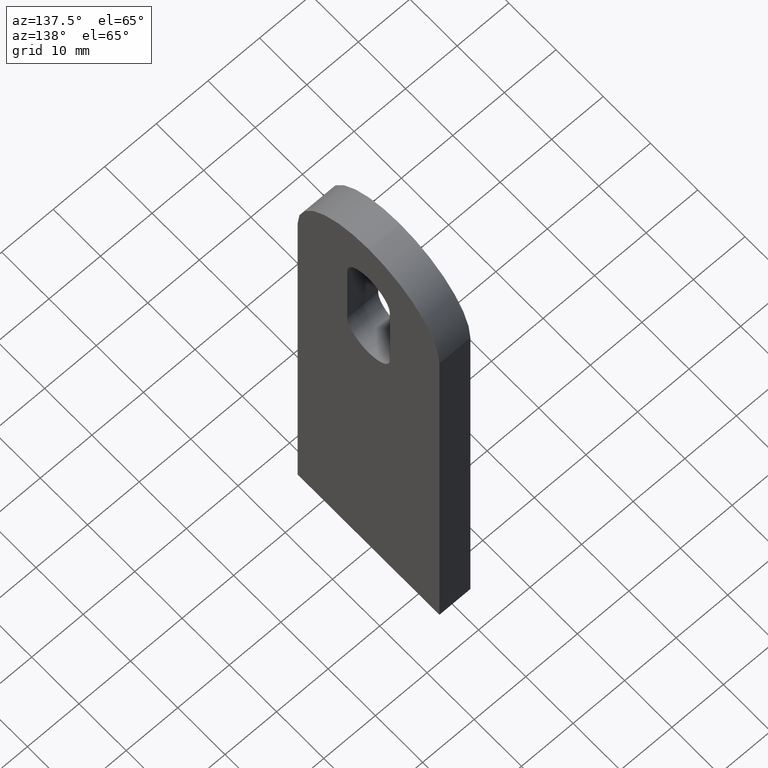
[diagram: clean part render]
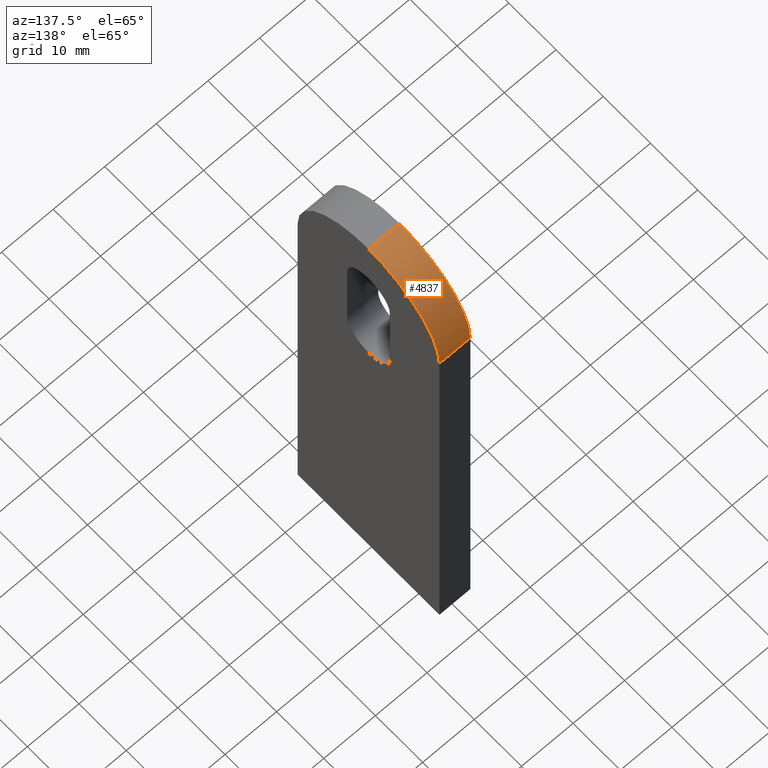
[diagram: same view with one face highlighted and labeled with its STEP entity id]
A machine part, auxiliary view. The second image highlights one B-rep face of the part: STEP entity #4837.
In plain terms, the highlighted cylindrical surface (partial cylindrical patch) has radius 15 mm, axis along (-1, -0, -0).
Its self-contained STEP definition (entity closure, byte-faithful):
#224 = AXIS2_PLACEMENT_3D ( 'NONE', #2365, #9261, #3348 ) ;
#307 = EDGE_CURVE ( 'NONE', #5444, #10231, #366, .T. ) ;
#318 = VECTOR ( 'NONE', #1847, 1000.000000000000000 ) ;
#366 = LINE ( 'NONE', #4333, #10526 ) ;
#824 = DIRECTION ( 'NONE',  ( -1.000000000000000000, -0.0000000000000000000, 0.0000000000000000000 ) ) ;
#1026 = CIRCLE ( 'NONE', #224, 15.00000000000000000 ) ;
#1277 = ORIENTED_EDGE ( 'NONE', *, *, #11747, .F. ) ;
#1487 = DIRECTION ( 'NONE',  ( -1.000000000000000000, -0.0000000000000000000, -0.0000000000000000000 ) ) ;
#1847 = DIRECTION ( 'NONE',  ( -1.000000000000000000, -0.0000000000000000000, -0.0000000000000000000 ) ) ;
#2365 = CARTESIAN_POINT ( 'NONE',  ( -3.000000000000000000, 0.0000000000000000000, 84.99999999999998600 ) ) ;
#3348 = DIRECTION ( 'NONE',  ( 0.0000000000000000000, 0.0000000000000000000, 1.000000000000000000 ) ) ;
#3459 = EDGE_CURVE ( 'NONE', #4749, #5881, #12627, .T. ) ;
#4333 = CARTESIAN_POINT ( 'NONE',  ( 3.000000000000000000, 15.00000000000000200, 84.99999999999998600 ) ) ;
#4722 = CARTESIAN_POINT ( 'NONE',  ( 3.000000000000000000, 15.00000000000000200, 84.99999999999998600 ) ) ;
#4749 = VERTEX_POINT ( 'NONE', #5975 ) ;
#4818 = DIRECTION ( 'NONE',  ( 0.0000000000000000000, 0.0000000000000000000, 1.000000000000000000 ) ) ;
#4837 = ADVANCED_FACE ( 'NONE', ( #8005 ), #7692, .T. ) ;
#4867 = EDGE_LOOP ( 'NONE', ( #8178, #10368, #12233, #1277 ) ) ;
#4881 = CARTESIAN_POINT ( 'NONE',  ( 3.000000000000000000, 0.0000000000000000000, 99.99999999999998600 ) ) ;
#5444 = VERTEX_POINT ( 'NONE', #4722 ) ;
#5881 = VERTEX_POINT ( 'NONE', #9190 ) ;
#5975 = CARTESIAN_POINT ( 'NONE',  ( 3.000000000000000000, 0.0000000000000000000, 99.99999999999998600 ) ) ;
#6882 = CARTESIAN_POINT ( 'NONE',  ( 3.000000000000000000, 0.0000000000000000000, 84.99999999999998600 ) ) ;
#7692 = CYLINDRICAL_SURFACE ( 'NONE', #9298, 15.00000000000000000 ) ;
#8005 = FACE_OUTER_BOUND ( 'NONE', #4867, .T. ) ;
#8178 = ORIENTED_EDGE ( 'NONE', *, *, #3459, .F. ) ;
#8299 = CARTESIAN_POINT ( 'NONE',  ( 3.000000000000000000, 0.0000000000000000000, 84.99999999999998600 ) ) ;
#9078 = EDGE_CURVE ( 'NONE', #4749, #5444, #11829, .T. ) ;
#9190 = CARTESIAN_POINT ( 'NONE',  ( -3.000000000000000000, 0.0000000000000000000, 99.99999999999998600 ) ) ;
#9261 = DIRECTION ( 'NONE',  ( -1.000000000000000000, -0.0000000000000000000, 0.0000000000000000000 ) ) ;
#9298 = AXIS2_PLACEMENT_3D ( 'NONE', #8299, #1487, #11194 ) ;
#10231 = VERTEX_POINT ( 'NONE', #11303 ) ;
#10281 = AXIS2_PLACEMENT_3D ( 'NONE', #6882, #824, #4818 ) ;
#10368 = ORIENTED_EDGE ( 'NONE', *, *, #9078, .T. ) ;
#10526 = VECTOR ( 'NONE', #12178, 1000.000000000000000 ) ;
#11194 = DIRECTION ( 'NONE',  ( 0.0000000000000000000, 0.0000000000000000000, 1.000000000000000000 ) ) ;
#11303 = CARTESIAN_POINT ( 'NONE',  ( -3.000000000000000000, 15.00000000000000200, 84.99999999999998600 ) ) ;
#11747 = EDGE_CURVE ( 'NONE', #5881, #10231, #1026, .T. ) ;
#11829 = CIRCLE ( 'NONE', #10281, 15.00000000000000000 ) ;
#12178 = DIRECTION ( 'NONE',  ( -1.000000000000000000, -0.0000000000000000000, -0.0000000000000000000 ) ) ;
#12233 = ORIENTED_EDGE ( 'NONE', *, *, #307, .T. ) ;
#12627 = LINE ( 'NONE', #4881, #318 ) ;